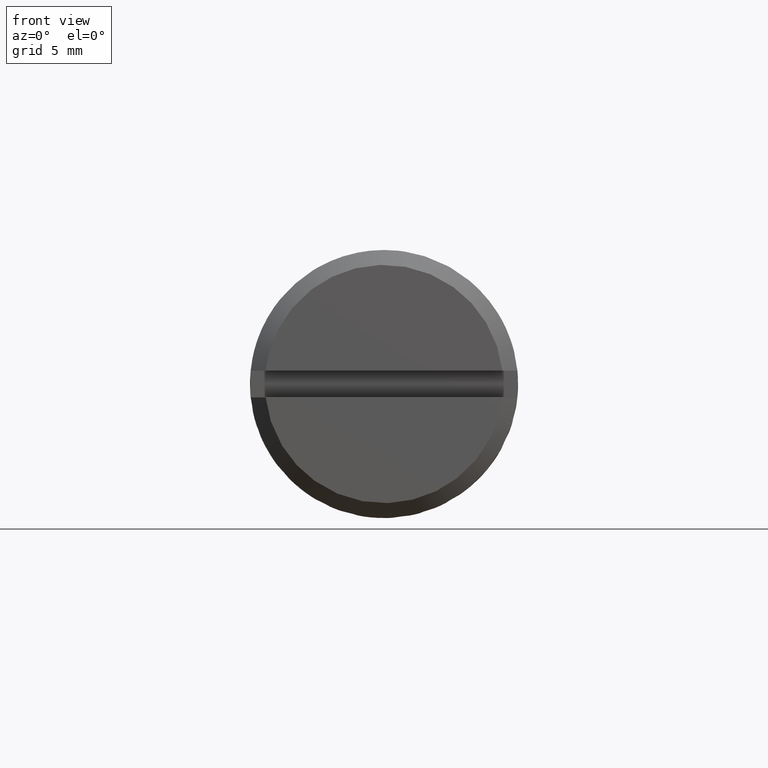
[diagram: clean part render]
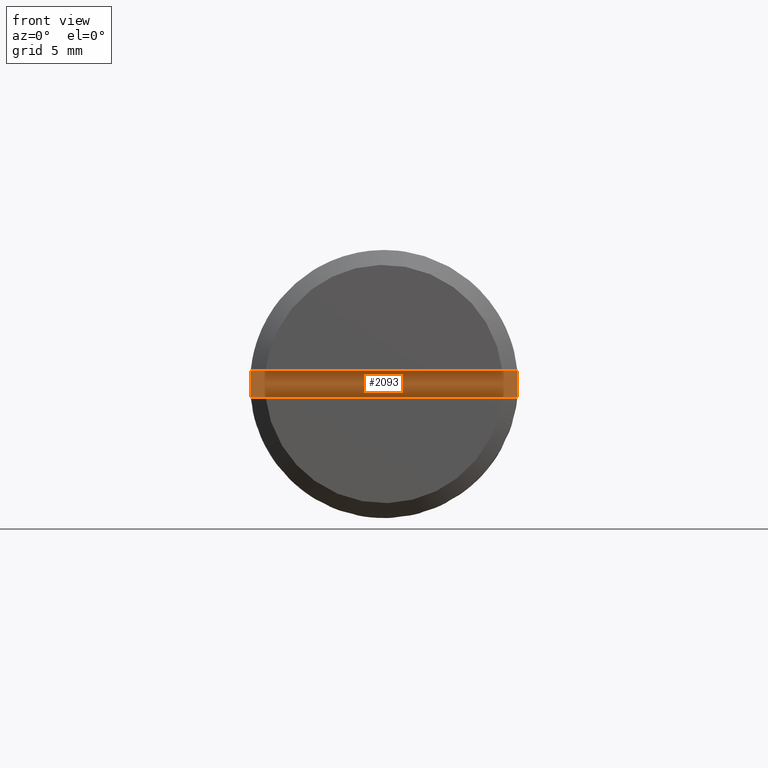
[diagram: same view with one face highlighted and labeled with its STEP entity id]
A machine part, front view. The second image highlights one B-rep face of the part: STEP entity #2093.
In plain terms, the highlighted face is a freeform B-spline surface patch.
Its self-contained STEP definition (entity closure, byte-faithful):
#1824=CARTESIAN_POINT('',(-10.0,-8.954886933959628,0.900000000000000));
#1825=VERTEX_POINT('',#1824);
#1831=CARTESIAN_POINT('',(-10.0,-8.954886933959628,-0.900000000000000));
#1832=VERTEX_POINT('',#1831);
#1833=CARTESIAN_POINT('',(-10.0,-8.954886933959628,0.900000000000000));
#1834=CARTESIAN_POINT('',(-10.0,-9.045340337332908,1.626303E-015));
#1835=CARTESIAN_POINT('',(-10.0,-8.954886933959628,-0.900000000000000));
#1843=(BOUNDED_CURVE()B_SPLINE_CURVE(2,(#1833,#1834,#1835),.UNSPECIFIED.,.F.,.U.)CURVE()GEOMETRIC_REPRESENTATION_ITEM()QUASI_UNIFORM_CURVE()RATIONAL_B_SPLINE_CURVE((1.0,0.994987437106620,1.0))REPRESENTATION_ITEM(''));
#1844=EDGE_CURVE('',#1825,#1832,#1843,.T.);
#1870=CARTESIAN_POINT('',(-10.0,8.954886933959628,-0.900000000000000));
#1871=VERTEX_POINT('',#1870);
#1877=CARTESIAN_POINT('',(-10.0,8.954886933959628,0.900000000000000));
#1878=VERTEX_POINT('',#1877);
#1879=CARTESIAN_POINT('',(-10.0,8.954886933959628,-0.900000000000000));
#1880=CARTESIAN_POINT('',(-10.0,9.045340337332908,-2.602085E-015));
#1881=CARTESIAN_POINT('',(-10.0,8.954886933959628,0.900000000000000));
#1889=(BOUNDED_CURVE()B_SPLINE_CURVE(2,(#1879,#1880,#1881),.UNSPECIFIED.,.F.,.U.)CURVE()GEOMETRIC_REPRESENTATION_ITEM()QUASI_UNIFORM_CURVE()RATIONAL_B_SPLINE_CURVE((1.0,0.994987437106620,1.0))REPRESENTATION_ITEM(''));
#1890=EDGE_CURVE('',#1871,#1878,#1889,.T.);
#2011=CARTESIAN_POINT('',(-10.0,8.954886933959628,0.900000000000000));
#2012=CARTESIAN_POINT('',(-10.0,-8.954886933959628,0.900000000000000));
#2013=QUASI_UNIFORM_CURVE('',1,(#2011,#2012),.UNSPECIFIED.,.F.,.U.);
#2014=EDGE_CURVE('',#1878,#1825,#2013,.T.);
#2049=CARTESIAN_POINT('',(-10.0,8.954886933959628,-0.900000000000000));
#2050=CARTESIAN_POINT('',(-10.0,-8.954886933959628,-0.900000000000000));
#2051=QUASI_UNIFORM_CURVE('',1,(#2049,#2050),.UNSPECIFIED.,.F.,.U.);
#2052=EDGE_CURVE('',#1871,#1832,#2051,.T.);
#2082=CARTESIAN_POINT('',(-10.0,-9.898879732889263,-0.989909973183274));
#2083=CARTESIAN_POINT('',(-10.0,-9.898879732889263,0.989909908810258));
#2084=CARTESIAN_POINT('',(-10.0,9.898879571956719,-0.989909973183274));
#2085=CARTESIAN_POINT('',(-10.0,9.898879571956719,0.989909908810258));
#2086=B_SPLINE_SURFACE_WITH_KNOTS('',1,1,((#2082,#2084),(#2083,#2085)),.UNSPECIFIED.,.F.,.F.,.U.,(2,2),(2,2),(0.0,1.979819881993532),(0.0,19.797759304845979),.UNSPECIFIED.);
#2087=ORIENTED_EDGE('',*,*,#2014,.F.);
#2088=ORIENTED_EDGE('',*,*,#1890,.F.);
#2089=ORIENTED_EDGE('',*,*,#2052,.T.);
#2090=ORIENTED_EDGE('',*,*,#1844,.F.);
#2091=EDGE_LOOP('',(#2087,#2088,#2089,#2090));
#2092=FACE_OUTER_BOUND('',#2091,.T.);
#2093=ADVANCED_FACE('',(#2092),#2086,.T.);